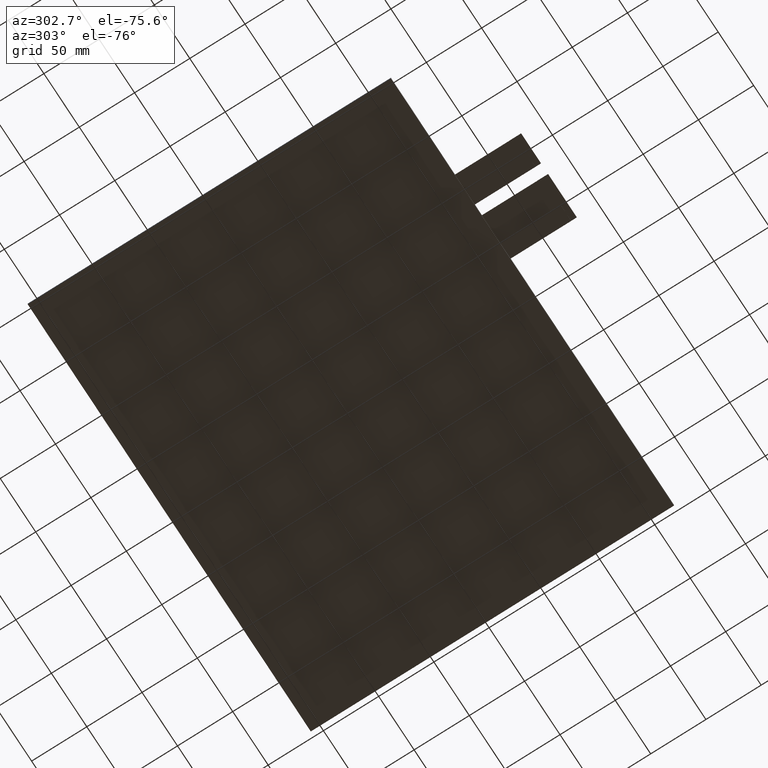
[diagram: clean part render]
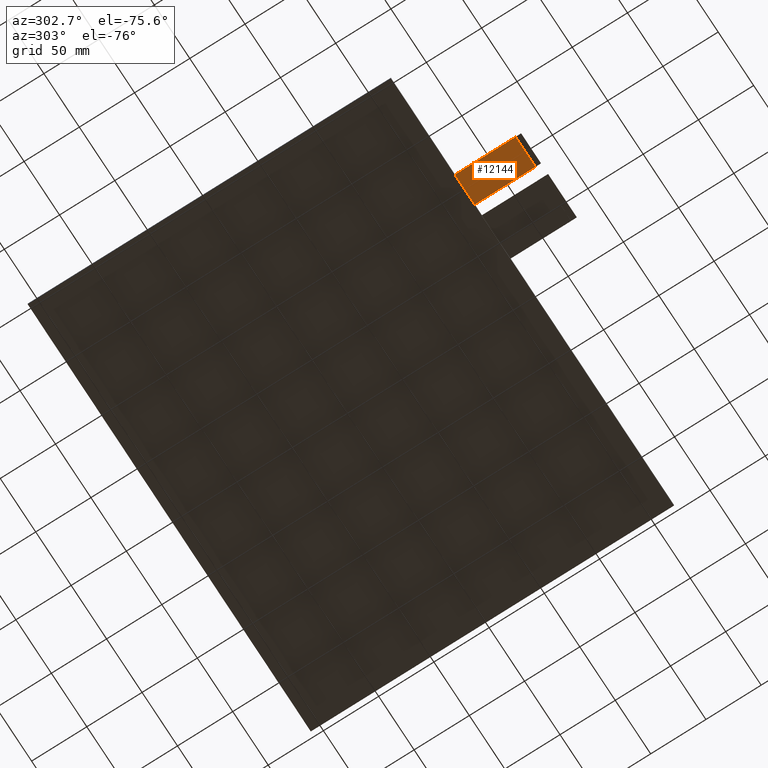
[diagram: same view with one face highlighted and labeled with its STEP entity id]
A machine part, auxiliary view. The second image highlights one B-rep face of the part: STEP entity #12144.
In plain terms, the highlighted planar face has unit normal (0, 0, -1).
Its self-contained STEP definition (entity closure, byte-faithful):
#686=PLANE('',#12750);
#1264=FACE_OUTER_BOUND('',#1842,.T.);
#1842=EDGE_LOOP('',(#11495,#11496,#11497,#11498));
#3502=LINE('',#18948,#5210);
#3508=LINE('',#18959,#5216);
#3530=LINE('',#19004,#5238);
#3534=LINE('',#19011,#5242);
#5210=VECTOR('',#15522,10.);
#5216=VECTOR('',#15530,10.);
#5238=VECTOR('',#15572,10.);
#5242=VECTOR('',#15580,10.);
#6387=VERTEX_POINT('',#18945);
#6388=VERTEX_POINT('',#18947);
#6392=VERTEX_POINT('',#18957);
#6405=VERTEX_POINT('',#19003);
#8078=EDGE_CURVE('',#6388,#6387,#3502,.T.);
#8084=EDGE_CURVE('',#6387,#6392,#3508,.T.);
#8106=EDGE_CURVE('',#6405,#6388,#3530,.T.);
#8110=EDGE_CURVE('',#6405,#6392,#3534,.T.);
#11495=ORIENTED_EDGE('',*,*,#8078,.T.);
#11496=ORIENTED_EDGE('',*,*,#8084,.T.);
#11497=ORIENTED_EDGE('',*,*,#8110,.F.);
#11498=ORIENTED_EDGE('',*,*,#8106,.T.);
#12144=ADVANCED_FACE('',(#1264),#686,.T.);
#12750=AXIS2_PLACEMENT_3D('',#19010,#15578,#15579);
#15522=DIRECTION('',(-1.,0.,0.));
#15530=DIRECTION('',(0.,1.,0.));
#15572=DIRECTION('',(5.9211894646675E-16,-1.,0.));
#15578=DIRECTION('center_axis',(0.,0.,-1.));
#15579=DIRECTION('ref_axis',(-1.,0.,0.));
#15580=DIRECTION('',(-1.,0.,0.));
#18945=CARTESIAN_POINT('',(-111.9,-224.25,-1.2));
#18947=CARTESIAN_POINT('',(-83.8999999999999,-224.25,-1.2));
#18948=CARTESIAN_POINT('',(-90.8999999999999,-224.25,-1.2));
#18957=CARTESIAN_POINT('',(-111.9,-169.25,-1.2));
#18959=CARTESIAN_POINT('',(-111.9,-169.25,-1.2));
#19003=CARTESIAN_POINT('',(-83.8999999999999,-169.25,-1.2));
#19004=CARTESIAN_POINT('',(-83.8999999999999,-229.25,-1.2));
#19010=CARTESIAN_POINT('Origin',(-97.8999999999999,-199.25,-1.2));
#19011=CARTESIAN_POINT('',(49.6000000000001,-169.25,-1.2));